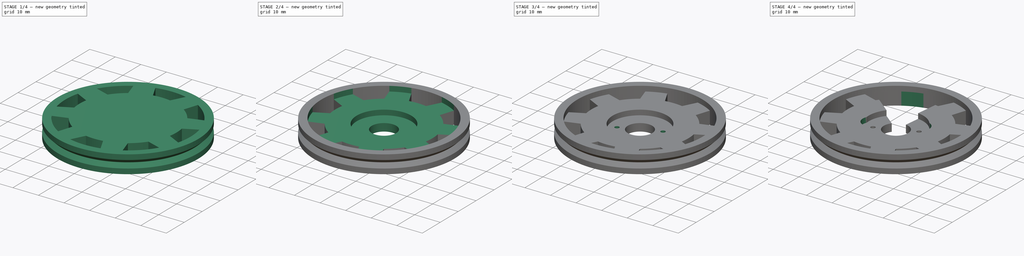
[diagram: build sequence overview — one tinted view per stage of 4, left to right]
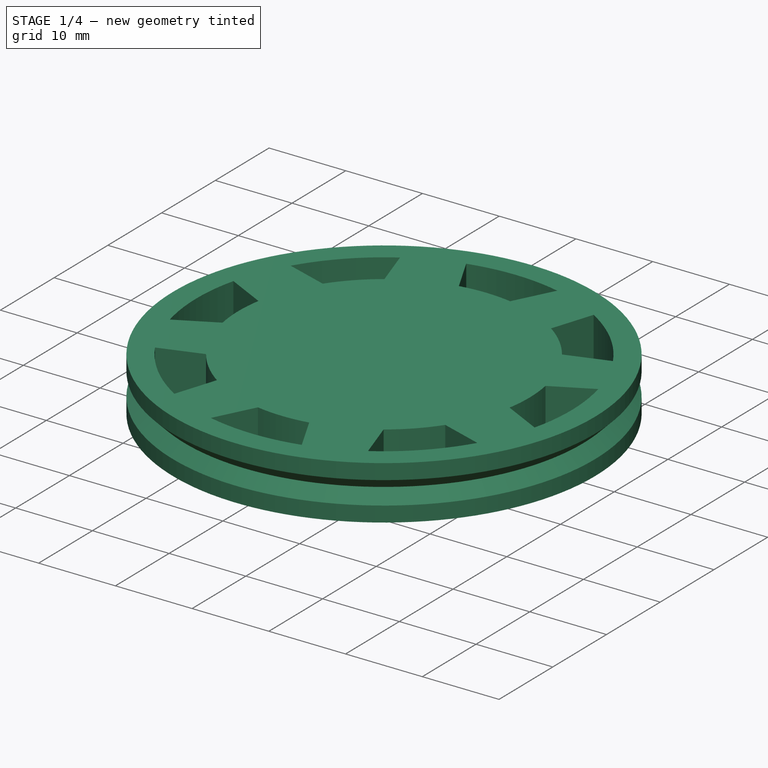
[diagram: stage 1 of 4 — iso view after this stage's code; geometry added in this stage tinted green]
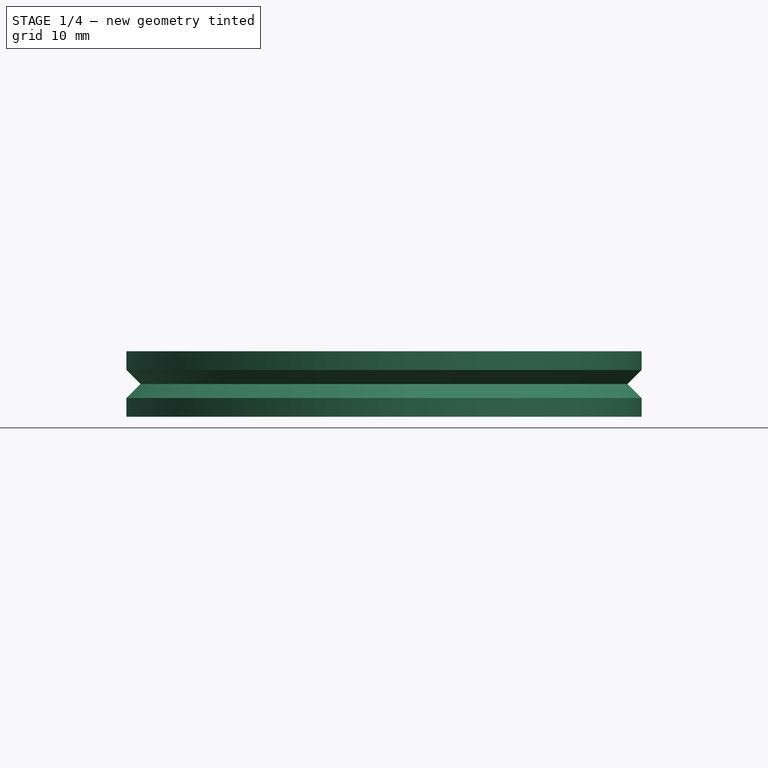
[diagram: stage 1 of 4 — front view after this stage's code; geometry added in this stage tinted green]
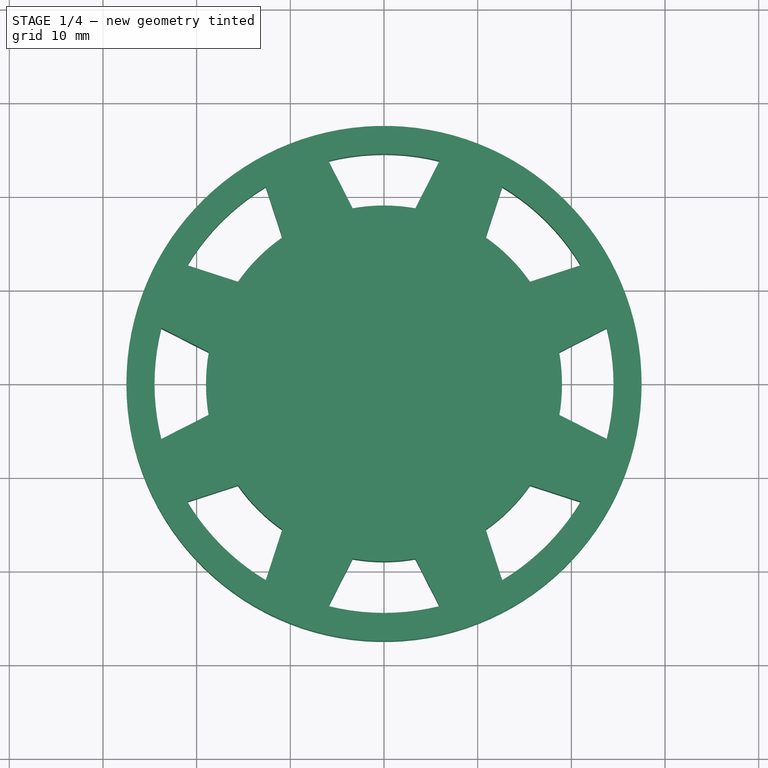
[diagram: stage 1 of 4 — top view after this stage's code; geometry added in this stage tinted green]
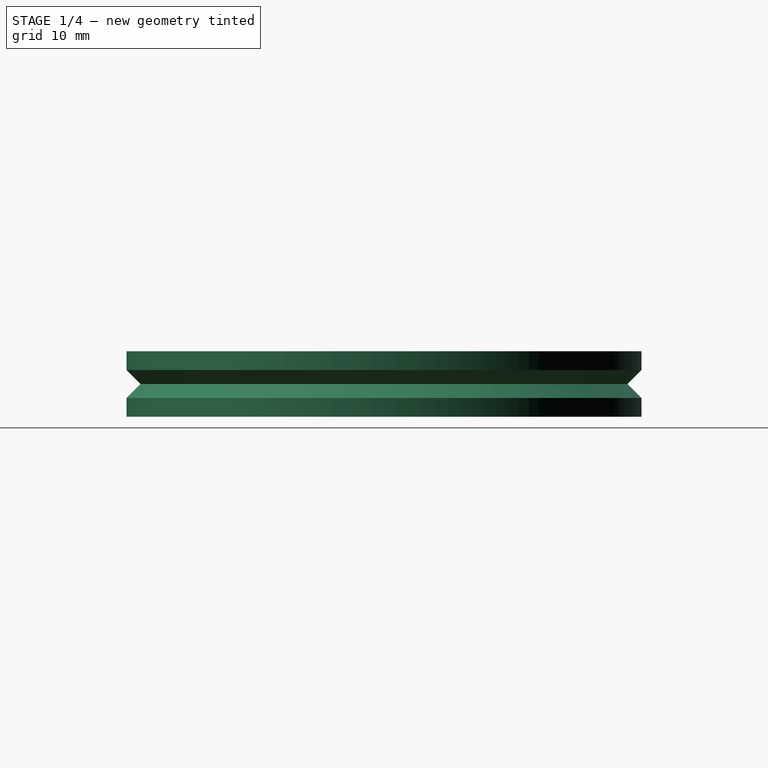
[diagram: stage 1 of 4 — right view after this stage's code; geometry added in this stage tinted green]
FCSTD DOCUMENT  (FreeCAD 0.14R3702 (Git))
Label: Renacuajo-wheel-open-hardware
License: CC-BY 3.0
LicenseURL: http://creativecommons.org/licenses/by/3.0/
objects: Sketcher::SketchObject×8, PartDesign::Pocket×7, PartDesign::PolarPattern×3, PartDesign::Revolution×1, Part::Feature×1
note: 28 computed .brp shape members not serialized (recipe doc carries the construction recipe); baked Part::Feature solids carry a one-line shape summary decoded from their .brp

FEATURE [Sketcher::SketchObject] Sketch  label="wheel-generic-sketch"
  Placement = pos=(0,0,0) rot=(1,0,0;1.5708rad)
  sketch-geometry (7):
    g0: LineSegment StartX=0 StartY=-3.5 StartZ=0 EndX=0 EndY=3.5 EndZ=0
    g1: LineSegment StartX=0 StartY=3.5 StartZ=0 EndX=27.5 EndY=3.5 EndZ=0
    g2: LineSegment StartX=27.5 StartY=3.5 StartZ=0 EndX=27.5 EndY=1.5 EndZ=0
    g3: LineSegment StartX=27.5 StartY=1.5 StartZ=0 EndX=26 EndY=0 EndZ=0
    g4: LineSegment StartX=26 StartY=0 StartZ=0 EndX=27.5 EndY=-1.5 EndZ=0
    g5: LineSegment StartX=27.5 StartY=-1.5 StartZ=0 EndX=27.5 EndY=-3.5 EndZ=0
    g6: LineSegment StartX=27.5 StartY=-3.5 StartZ=0 EndX=0 EndY=-3.5 EndZ=0
  constraints (20):
    c: Vertical(g0)
    c: Coincident(g0,g1)
    c: Horizontal(g1)
    c: Coincident(g1,g2)
    c: Vertical(g2)
    c: Coincident(g2,g3)
    c: Coincident(g3,g4)
    c: Coincident(g4,g5)
    c: Coincident(g5,g6)
    c: Coincident(g6,g0)
    c: Horizontal(g6)
    c: Vertical(g5)
    c: PointOnObject(g0,g-2)
    c: Symmetric(g0,g0,g-1)
    c: PointOnObject(g3,g-1)
    c: Symmetric(g4,g2,g-1)
    c: Angle(g3,g-1) = 2.35619
    c: DistanceY(g4,g2) = 3
    c: DistanceX(g1) = 27.5
    c: DistanceY(g0) = 7
FEATURE [PartDesign::Revolution] Revolution  label="wheel-generic"
  Angle = 360
  Axis = (0,0,1)
  Base = (0,0,0)
  Placement = pos=(0,0,0) rot=(1,0,0;1.5708rad)
  ReferenceAxis = -> Sketch [V_Axis]
  Reversed = true
  Sketch = -> Sketch
FEATURE [Sketcher::SketchObject] Sketch002  label="gear-tooth-cutout-sketch"
  Placement = pos=(0,0,3.5) rot=(0,0,1;3.14159rad)
  Support = -> Revolution [Face1]
  sketch-geometry (11):
    g0: LineSegment [constr] StartX=0 StartY=0 StartZ=0 EndX=0 EndY=19 EndZ=0
    g1: LineSegment [constr] StartX=0 StartY=0 StartZ=0 EndX=-3.34436 EndY=18.7033 EndZ=0
    g2: LineSegment [constr] StartX=0 StartY=0 StartZ=0 EndX=-5.92709 EndY=23.7722 EndZ=0
    g3: ArcOfCircle CenterX=0 CenterY=0 CenterZ=0 NormalX=0 NormalY=0 NormalZ=1 Radius=24.5 StartAngle=1.32645 EndAngle=1.81514
    g4: LineSegment [constr] StartX=5.92709 StartY=23.7722 StartZ=0 EndX=0 EndY=0 EndZ=0
    g5: LineSegment [constr] StartX=3.34436 StartY=18.7033 StartZ=0 EndX=0 EndY=0 EndZ=0
    g6: ArcOfCircle CenterX=0 CenterY=0 CenterZ=0 NormalX=0 NormalY=0 NormalZ=1 Radius=19 StartAngle=1.39386 EndAngle=1.74774
    g7: LineSegment StartX=-5.92709 StartY=23.7722 StartZ=0 EndX=-3.34436 EndY=18.7033 EndZ=0
    g8: LineSegment StartX=3.34436 StartY=18.7033 StartZ=0 EndX=5.92709 EndY=23.7722 EndZ=0
    g9: ArcOfCircle [constr] CenterX=0 CenterY=0 CenterZ=0 NormalX=0 NormalY=0 NormalZ=1 Radius=24.5 StartAngle=1.1781 EndAngle=1.9635
    g10: LineSegment [constr] StartX=-9.37574 StartY=22.635 StartZ=0 EndX=0 EndY=0 EndZ=0
  constraints (29):
    c: Coincident(g0,g-1)
    c: Vertical(g0)
    c: Coincident(g1,g-1)
    c: Coincident(g2,g-1)
    c: Equal(g0,g1)
    c: Coincident(g3,g-1)
    c: Coincident(g3,g2)
    c: Coincident(g4,g-1)
    c: Symmetric(g4,g2,g-2)
    c: Coincident(g3,g4)
    c: Coincident(g5,g-1)
    c: Coincident(g6,g-1)
    c: Coincident(g6,g1)
    c: Coincident(g6,g5)
    c: Symmetric(g1,g5,g-2)
    c: Coincident(g7,g2)
    c: Coincident(g7,g1)
    c: Coincident(g8,g5)
    c: Coincident(g8,g3)
    c: Coincident(g9,g-1)
    c: Symmetric(g9,g9,g-2)
    c: Coincident(g10,g-1)
    c: Equal(g2,g10)
    c: Coincident(g9,g10)
    c: Angle(g-2,g10) = 0.392699
    c: Angle(g-2,g2) = 0.244346
    c: Angle(g2,g7) = 0.226893
    c: Distance(g10) = 24.5
    c: DistanceY(g0) = 19
FEATURE [PartDesign::Pocket] Pocket001  label="gear-tooth-cutout"
  Length = 5
  Placement = pos=(0,0,0) rot=(1,0,0;1.5708rad)
  Sketch = -> Sketch002
  Type = 1
FEATURE [PartDesign::PolarPattern] PolarPattern
  Angle = 360
  Axis = -> Sketch002 [N_Axis]
  Occurrences = 8
  Originals = -> [Pocket001]
  Placement = pos=(0,0,0) rot=(1,0,0;1.5708rad)
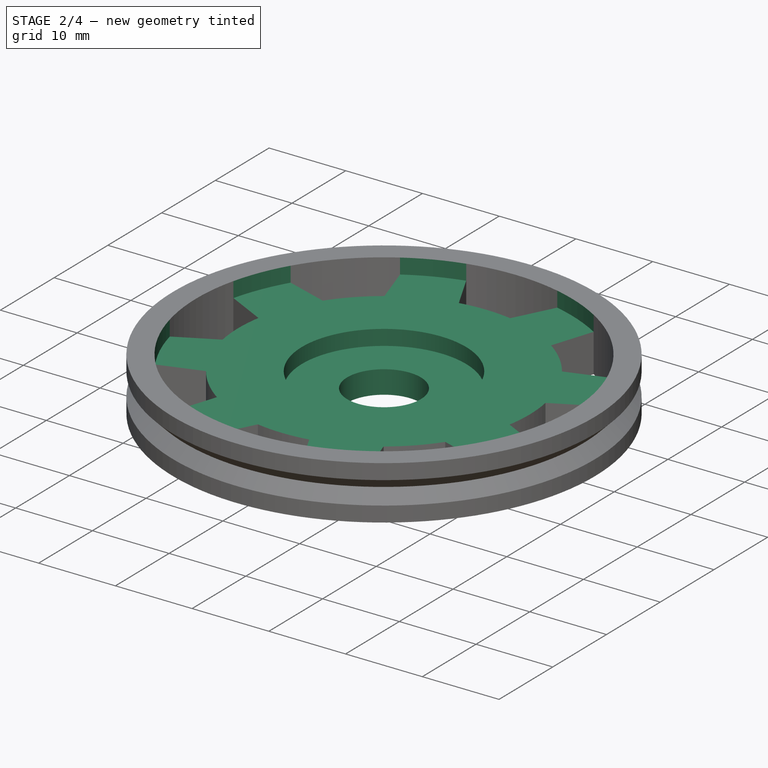
[diagram: stage 2 of 4 — iso view after this stage's code; geometry added in this stage tinted green]
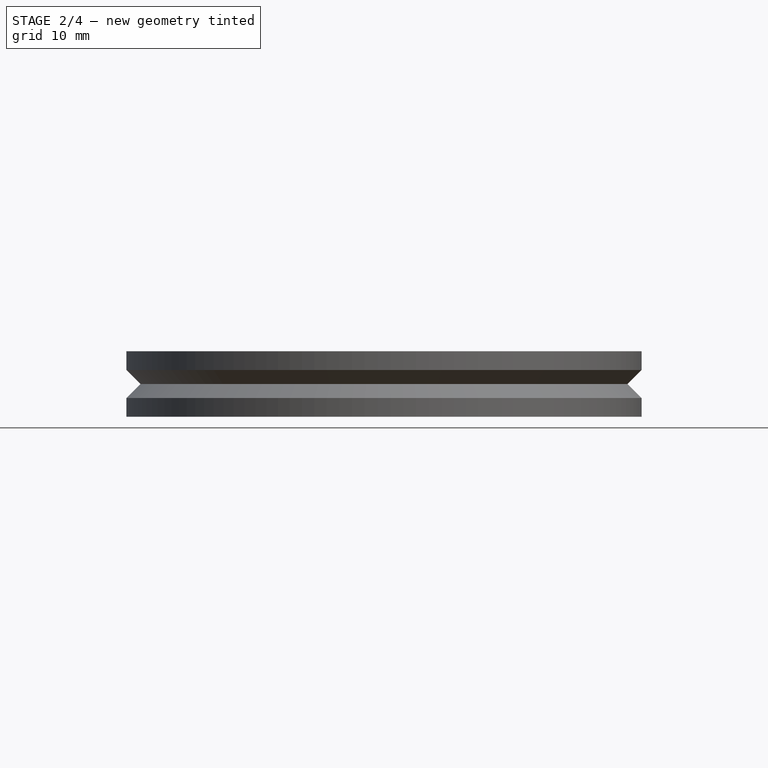
[diagram: stage 2 of 4 — front view after this stage's code; geometry added in this stage tinted green]
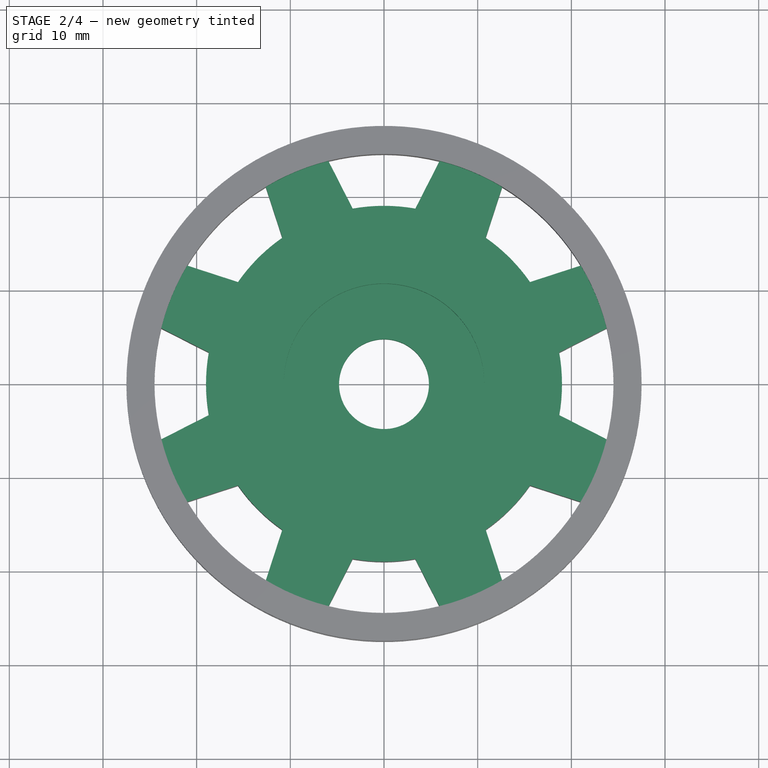
[diagram: stage 2 of 4 — top view after this stage's code; geometry added in this stage tinted green]
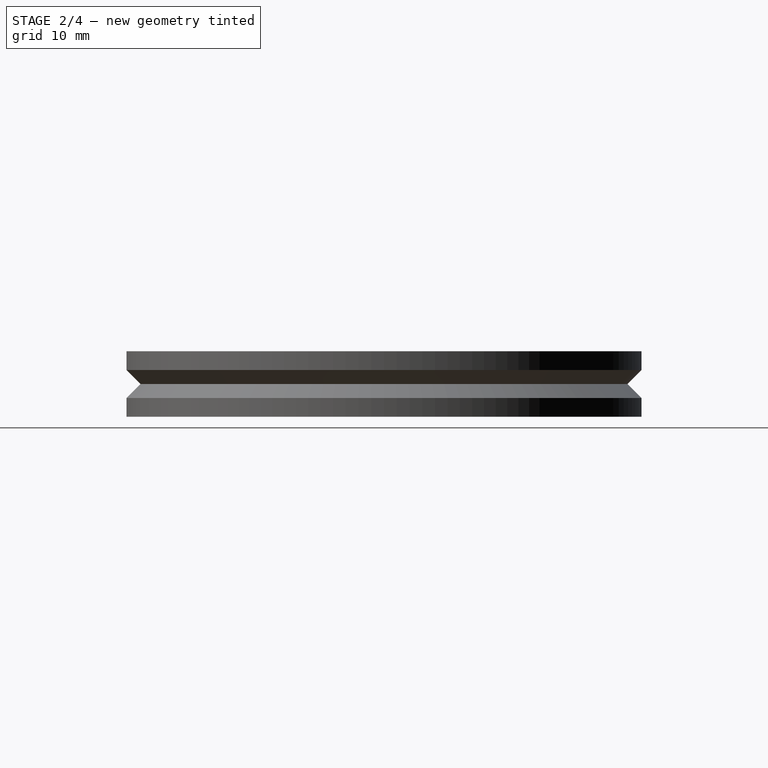
[diagram: stage 2 of 4 — right view after this stage's code; geometry added in this stage tinted green]
FEATURE [Sketcher::SketchObject] Sketch001  label="perimeter-sketch"
  Placement = pos=(0,0,3.5) rot=(0,0,1;3.14159rad)
  Support = -> PolarPattern [Face1]
  sketch-geometry (1):
    g0: Circle CenterX=0 CenterY=0 CenterZ=0 NormalX=0 NormalY=0 NormalZ=1 Radius=24.5
  constraints (1):
    c: Radius(g0) = 24.5
FEATURE [PartDesign::Pocket] Pocket  label="perimeter"
  Length = 2
  Placement = pos=(0,0,0) rot=(1,0,0;1.5708rad)
  Sketch = -> Sketch001
  Type = 0
FEATURE [Sketcher::SketchObject] Sketch003  label="rounded-horn-cutout-sketch"
  Placement = pos=(0,0,1.5) rot=(0,0,1;3.14159rad)
  Support = -> Pocket [Face6]
  sketch-geometry (1):
    g0: Circle CenterX=0 CenterY=0 CenterZ=0 NormalX=0 NormalY=0 NormalZ=1 Radius=10.7
  constraints (2):
    c: Coincident(g0,g-1)
    c: Radius(g0) = 10.7
FEATURE [PartDesign::Pocket] Pocket002  label="rounded-horn-cutout"
  Length = 2
  Placement = pos=(0,0,0) rot=(1,0,0;1.5708rad)
  Sketch = -> Sketch003
  Type = 0
FEATURE [Sketcher::SketchObject] Sketch004  label="shaft-drill-sketch"
  Placement = pos=(0,0,-0.5) rot=(0,0,1;3.14159rad)
  Support = -> Pocket002 [Face34]
  sketch-geometry (1):
    g0: Circle CenterX=0 CenterY=0 CenterZ=0 NormalX=0 NormalY=0 NormalZ=1 Radius=4.8
  constraints (2):
    c: Coincident(g0,g-1)
    c: Radius(g0) = 4.8
FEATURE [PartDesign::Pocket] Pocket003  label="Shaft-drill"
  Length = 5
  Placement = pos=(0,0,0) rot=(1,0,0;1.5708rad)
  Sketch = -> Sketch004
  Type = 1
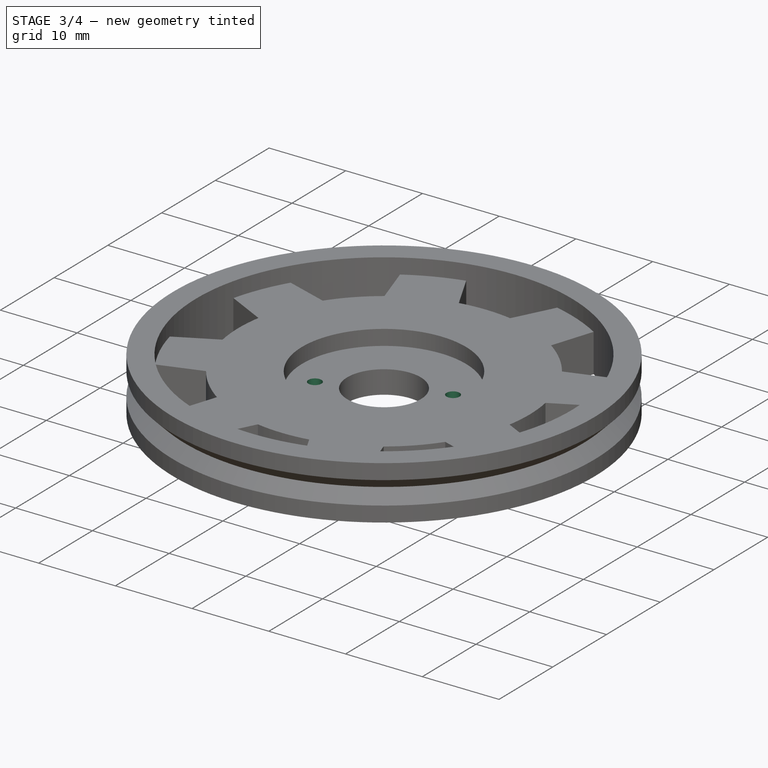
[diagram: stage 3 of 4 — iso view after this stage's code; geometry added in this stage tinted green]
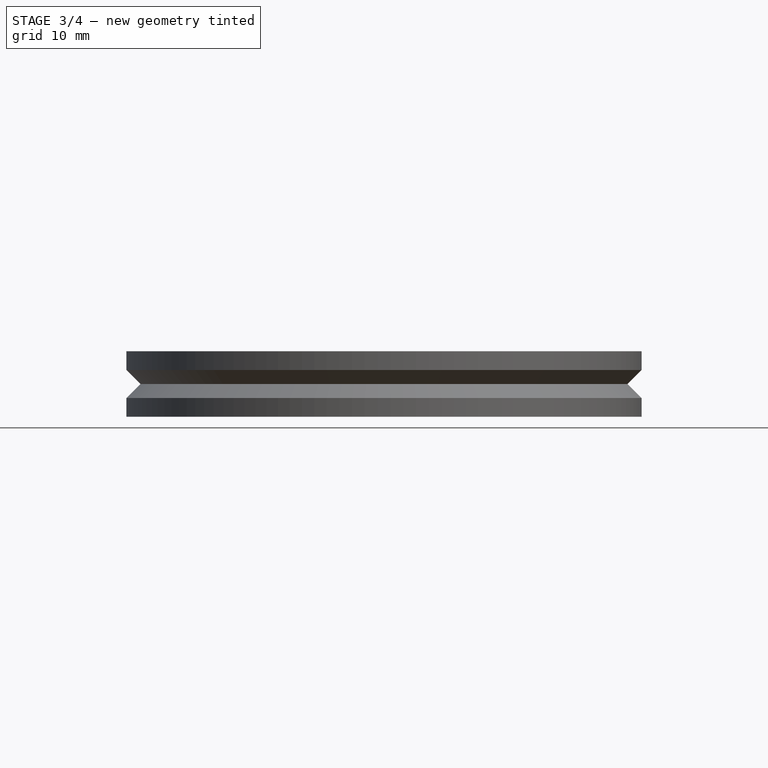
[diagram: stage 3 of 4 — front view after this stage's code; geometry added in this stage tinted green]
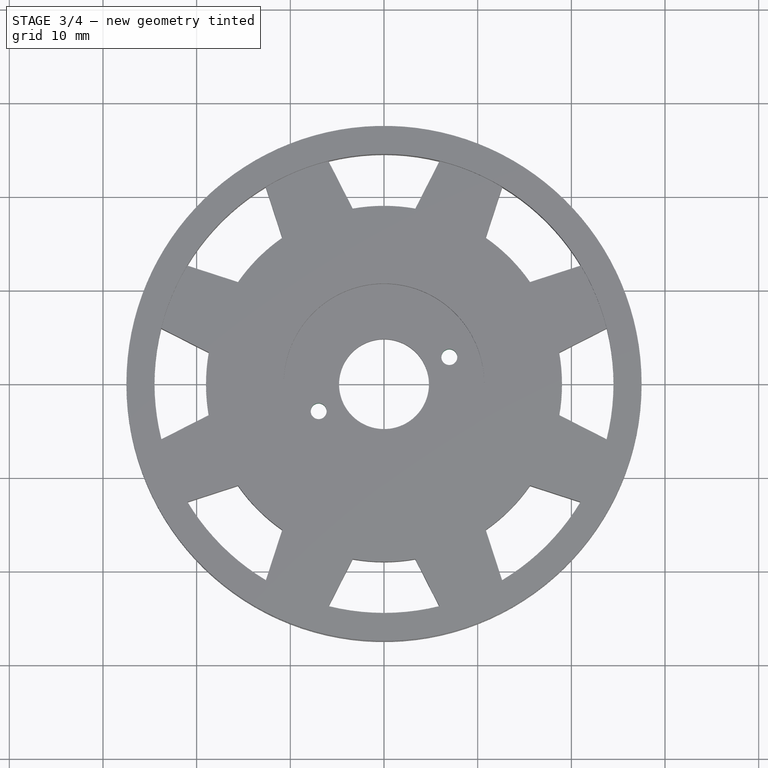
[diagram: stage 3 of 4 — top view after this stage's code; geometry added in this stage tinted green]
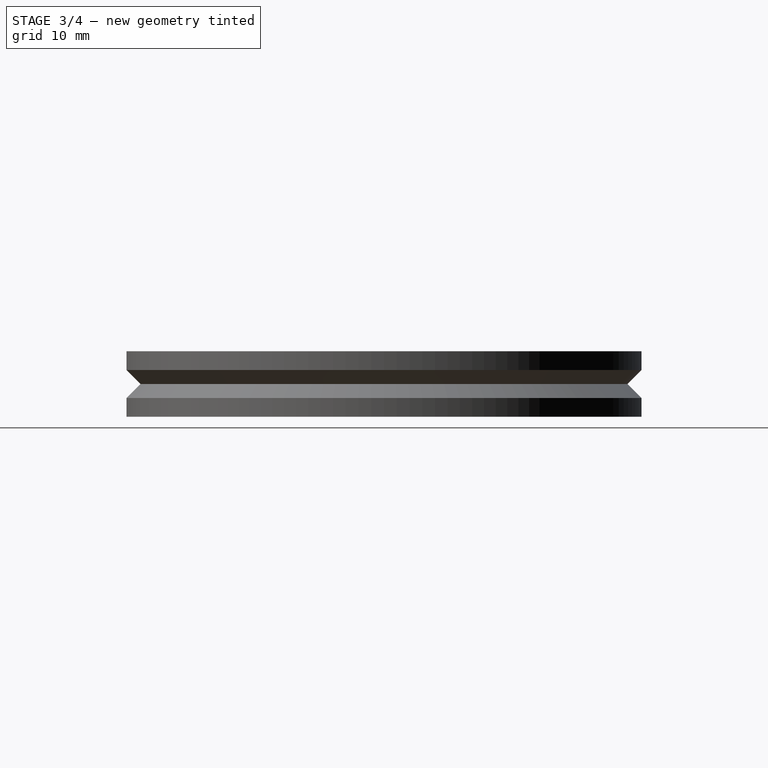
[diagram: stage 3 of 4 — right view after this stage's code; geometry added in this stage tinted green]
FEATURE [Sketcher::SketchObject] Sketch006  label="horn-drill-master-sketch"
  ExternalGeometry = -> [Pocket003]
  Placement = pos=(0,0,-0.5) rot=(0,0,1;3.14159rad)
  Support = -> Pocket003 [Face35]
  sketch-geometry (2):
    g0: LineSegment [constr] StartX=9.88551 StartY=4.09471 StartZ=0 EndX=0 EndY=0 EndZ=0
    g1: Circle CenterX=6.97529 CenterY=2.88926 CenterZ=0 NormalX=0 NormalY=0 NormalZ=1 Radius=0.85
  constraints (6):
    c: Coincident(g0,g-1)
    c: Angle(g-1,g0) = 0.392699
    c: PointOnObject(g0,g-3)
    c: PointOnObject(g1,g0)
    c: Radius(g1) = 0.85
    c: Distance(g-1,g1) = 7.55
FEATURE [PartDesign::Pocket] Pocket004  label="horn-drill-master"
  Length = 5
  Placement = pos=(0,0,0) rot=(1,0,0;1.5708rad)
  Sketch = -> Sketch006
  Type = 1
FEATURE [PartDesign::PolarPattern] PolarPattern002  label="horn-drills001"
  Angle = 360
  Axis = -> Sketch006 [N_Axis]
  Occurrences = 2
  Originals = -> [Pocket004]
  Placement = pos=(0,0,0) rot=(1,0,0;1.5708rad)
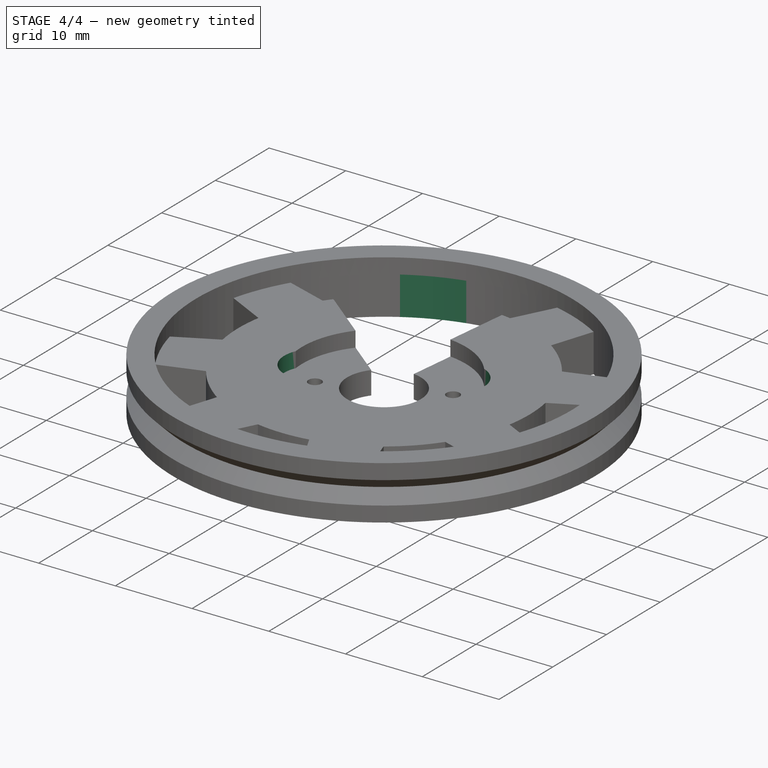
[diagram: stage 4 of 4 — iso view after this stage's code; geometry added in this stage tinted green]
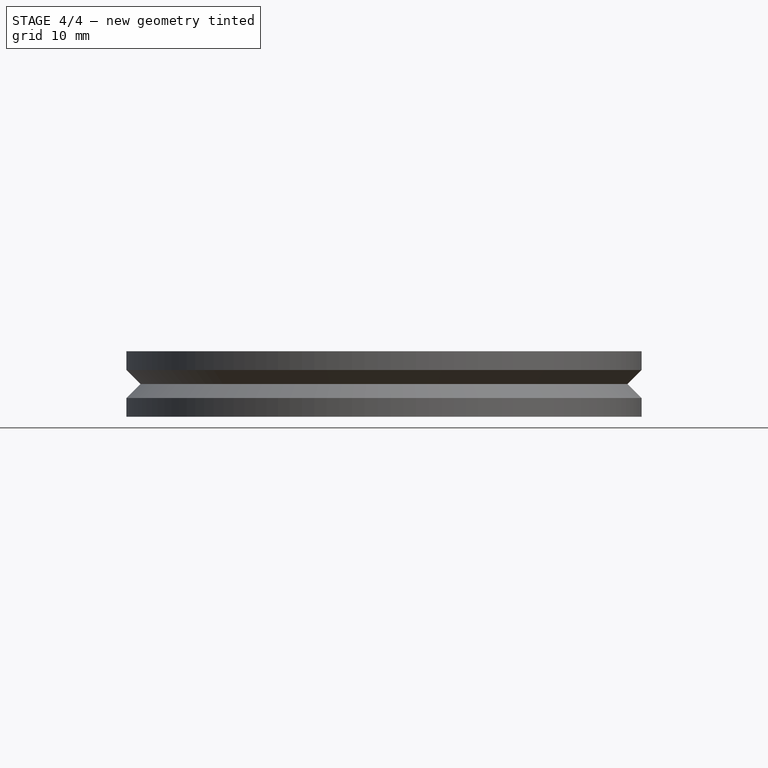
[diagram: stage 4 of 4 — front view after this stage's code; geometry added in this stage tinted green]
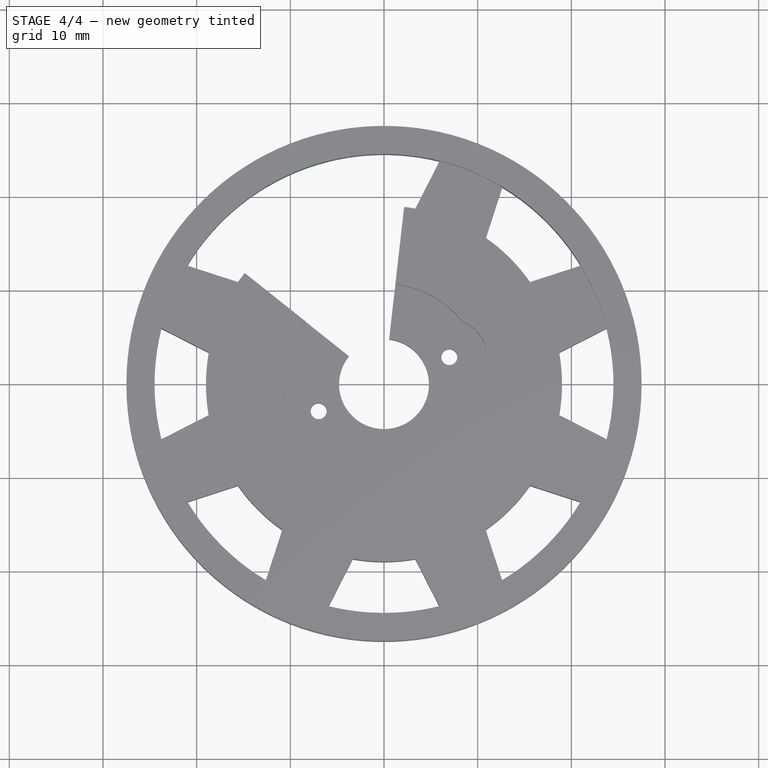
[diagram: stage 4 of 4 — top view after this stage's code; geometry added in this stage tinted green]
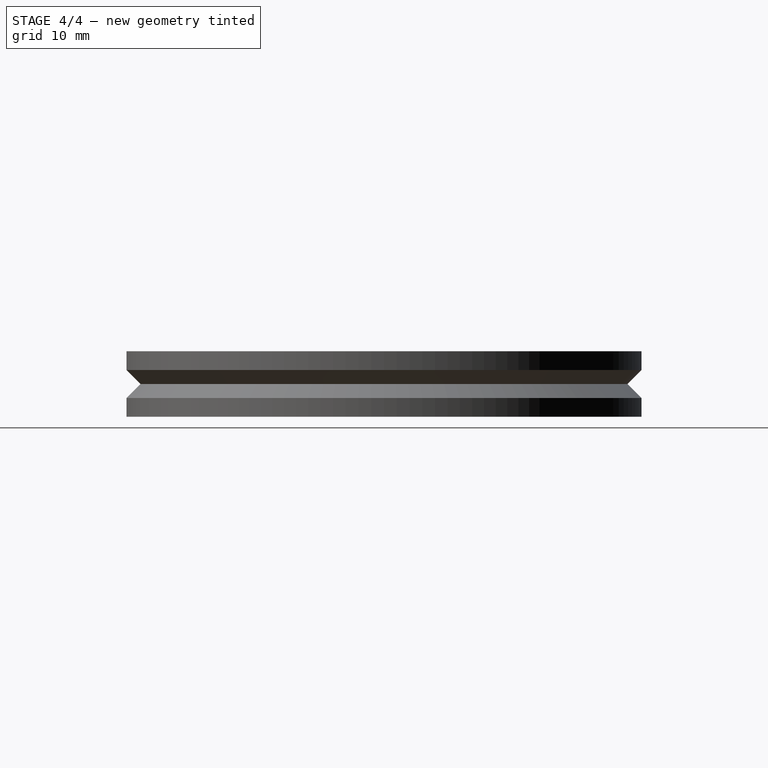
[diagram: stage 4 of 4 — right view after this stage's code; geometry added in this stage tinted green]
FEATURE [Sketcher::SketchObject] Sketch007  label="horn-drill-room-master-sketch"
  ExternalGeometry = -> [PolarPattern002]
  Placement = pos=(0,0,1.5) rot=(0,0,1;3.14159rad)
  Support = -> PolarPattern002 [Face7]
  sketch-geometry (2):
    g0: LineSegment [constr] StartX=0 StartY=0 StartZ=0 EndX=-9.88551 EndY=-4.09471 EndZ=0
    g1: Circle CenterX=-6.97529 CenterY=-2.88926 CenterZ=0 NormalX=0 NormalY=0 NormalZ=1 Radius=4
  constraints (6):
    c: Coincident(g0,g-1)
    c: PointOnObject(g0,g-3)
    c: Angle(g0,g-1) = 2.74889
    c: PointOnObject(g1,g0)
    c: Radius(g1) = 4
    c: Distance(g-1,g1) = 7.55
FEATURE [PartDesign::Pocket] Pocket005  label="horn-drill-room-master"
  Length = 2
  Placement = pos=(0,0,0) rot=(1,0,0;1.5708rad)
  Sketch = -> Sketch007
  Type = 0
FEATURE [PartDesign::PolarPattern] PolarPattern003  label="horn-drills-room"
  Angle = 360
  Axis = -> Sketch007 [N_Axis]
  Occurrences = 2
  Originals = -> [Pocket005]
  Placement = pos=(0,0,0) rot=(1,0,0;1.5708rad)
FEATURE [Sketcher::SketchObject] Sketch008  label="open-hw-cutout-sketch"
  Placement = pos=(0,0,1.5) rot=(0,0,1;3.14159rad)
  Support = -> PolarPattern003 [Face7]
  sketch-geometry (3):
    g0: LineSegment StartX=0 StartY=0 StartZ=0 EndX=19.1739 EndY=-15.2516 EndZ=0
    g1: LineSegment StartX=0 StartY=0 StartZ=0 EndX=-2.77348 EndY=-24.3425 EndZ=0
    g2: ArcOfCircle CenterX=0 CenterY=0 CenterZ=0 NormalX=0 NormalY=0 NormalZ=1 Radius=24.5 StartAngle=4.59894 EndAngle=5.61123
  constraints (8):
    c: Coincident(g0,g-1)
    c: Coincident(g1,g-1)
    c: Angle(g1,g0) = 1.01229
    c: Coincident(g2,g-1)
    c: Coincident(g2,g0)
    c: Coincident(g2,g1)
    c: Distance(g0) = 24.5
    c: Angle(g0,g-1) = 0.671952
FEATURE [PartDesign::Pocket] Pocket006  label="Open-hw-cutout"
  Length = 5
  Placement = pos=(0,0,0) rot=(1,0,0;1.5708rad)
  Sketch = -> Sketch008
  Type = 1
FEATURE [Part::Feature] Pocket006001  label="Renacuajo-open-hardware-wheel-final"
  Placement = pos=(0,0,0) rot=(1,0,0;1.5708rad)
  shape: bbox 55 x 55 x 7 mm, 43 faces (baked)
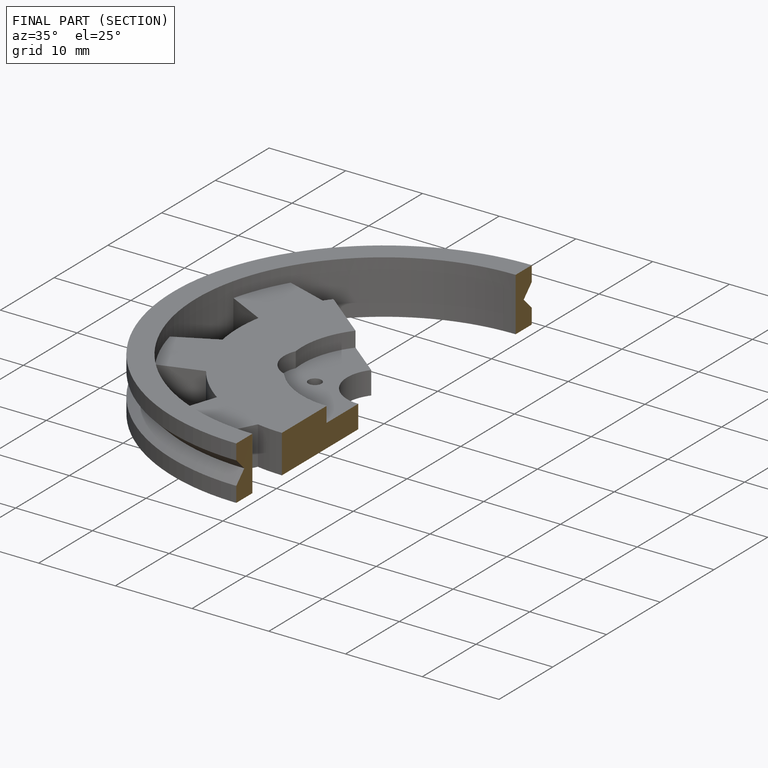
[diagram: finished part — half-section view (interior)]
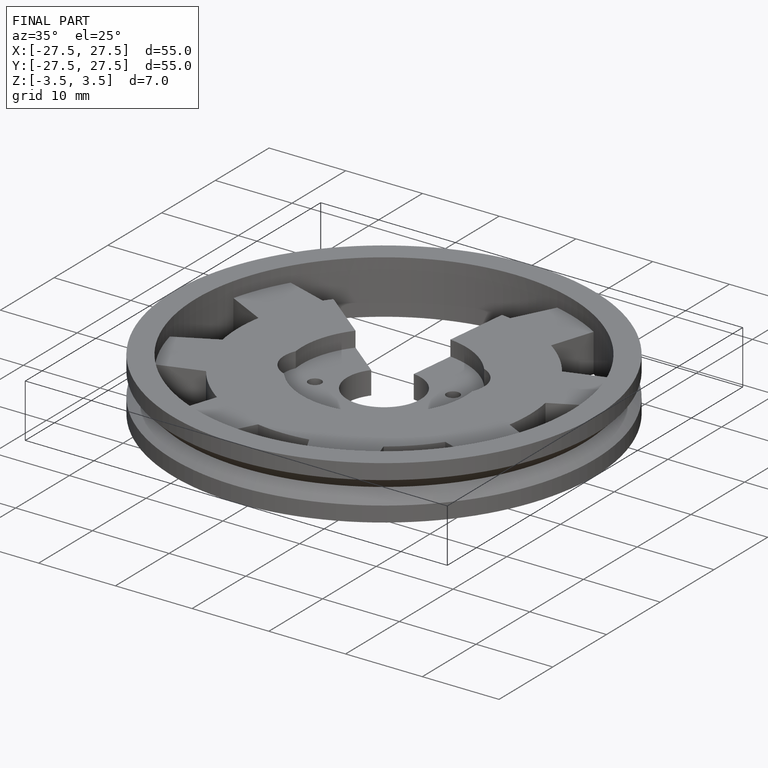
[diagram: finished part — iso view with bounding-box wireframe]
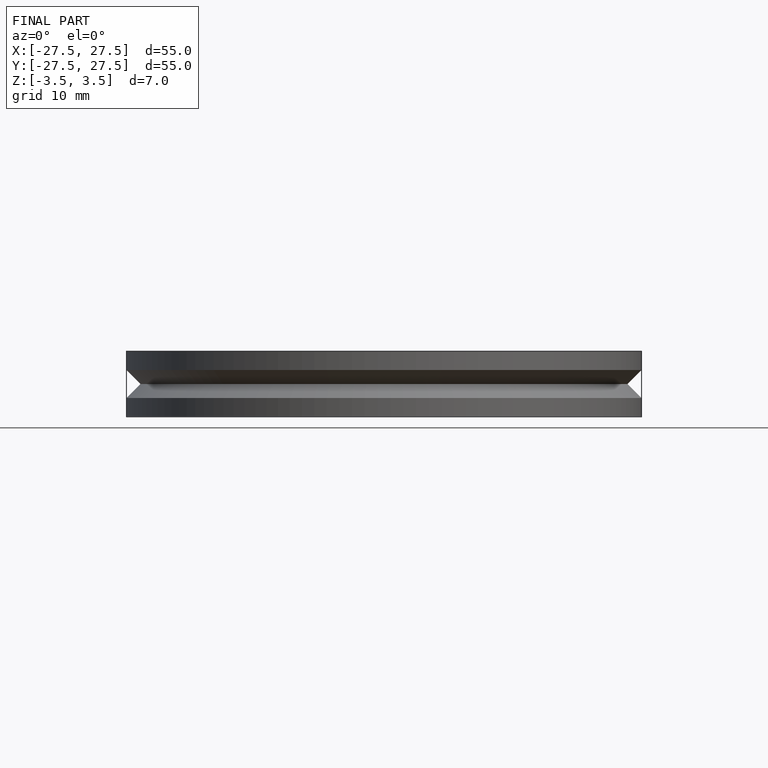
[diagram: finished part — front view with bounding-box wireframe]
